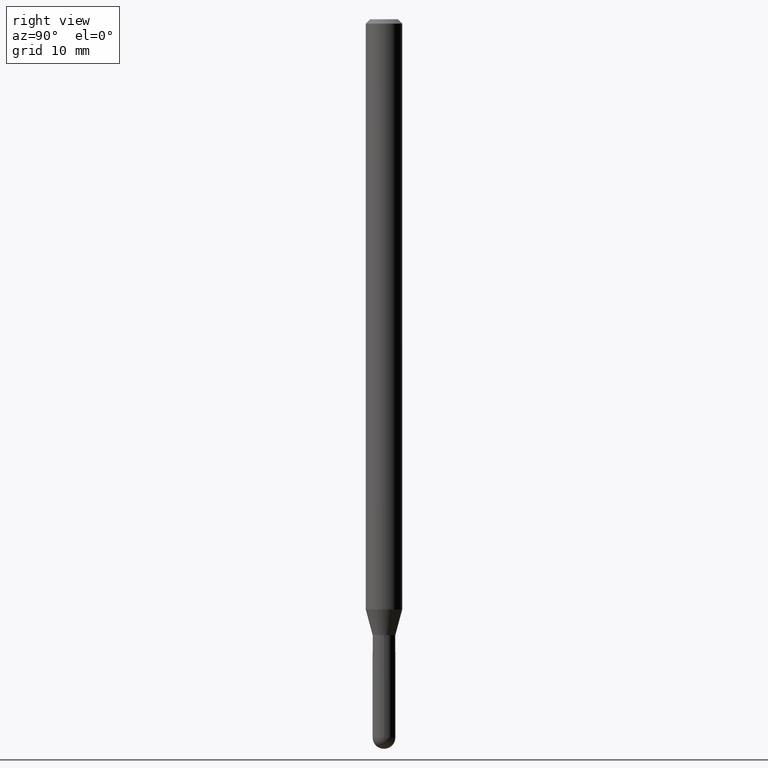
[diagram: clean part render]
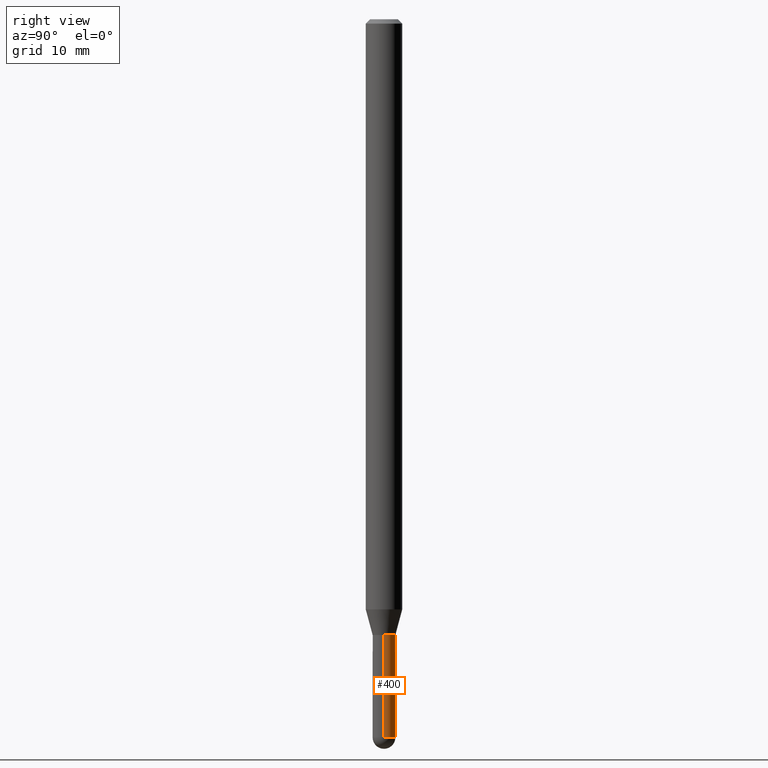
[diagram: same view with one face highlighted and labeled with its STEP entity id]
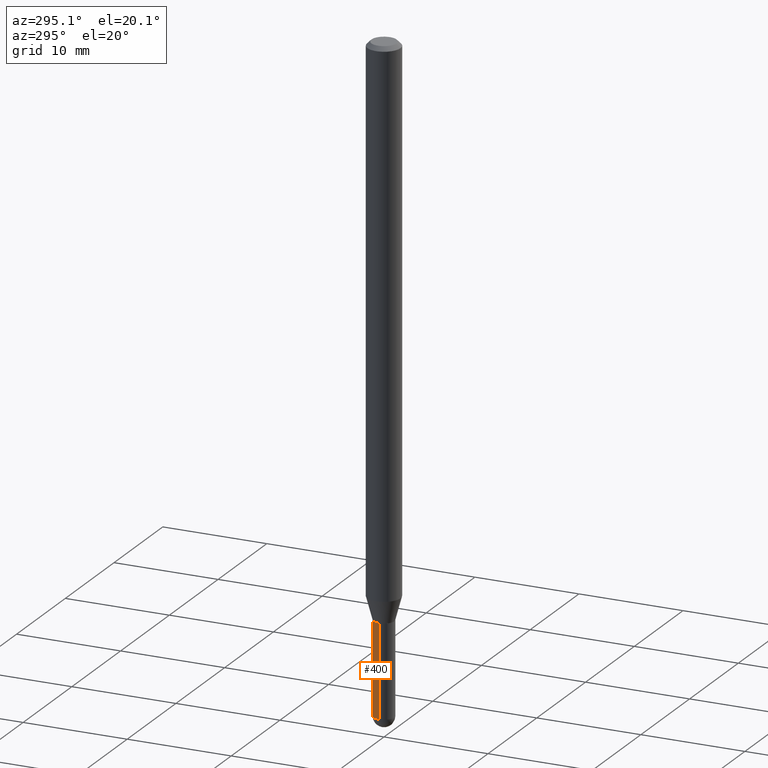
[diagram: same view with one face highlighted and labeled with its STEP entity id]
A machine part, right view. The second image highlights one B-rep face of the part: STEP entity #400.
A second angle (auxiliary view) of the same face is appended — the face is thin or edge-on in the first view.
In plain terms, the highlighted cylindrical surface (edge-blend (fillet) strip) has radius 0.9906 mm, axis along (-0, 0, 1).
Its self-contained STEP definition (entity closure, byte-faithful):
#15 = CARTESIAN_POINT ( 'NONE',  ( 0.03899999999999999994, -8.252116144355773169E-15, -2.460999999999999854 ) ) ;
#28 = DIRECTION ( 'NONE',  ( -2.445468806185136597E-29, 3.491481338843145583E-15, 1.000000000000000000 ) ) ;
#33 = EDGE_LOOP ( 'NONE', ( #316, #459, #309, #160, #425 ) ) ;
#42 = VERTEX_POINT ( 'NONE', #52 ) ;
#51 = CIRCLE ( 'NONE', #423, 0.03899999999999999994 ) ;
#52 = CARTESIAN_POINT ( 'NONE',  ( -0.03899999999999999994, -7.702668932979569039E-15, -2.110000000000000320 ) ) ;
#61 = VECTOR ( 'NONE', #285, 39.37007874015748143 ) ;
#65 = EDGE_CURVE ( 'NONE', #95, #42, #174, .T. ) ;
#73 = DIRECTION ( 'NONE',  ( 1.000000000000000000, -6.982962677686258033E-15, 0.000000000000000000 ) ) ;
#79 = CYLINDRICAL_SURFACE ( 'NONE', #479, 0.03899999999999999994 ) ;
#81 = CIRCLE ( 'NONE', #406, 0.03899999999999999994 ) ;
#95 = VERTEX_POINT ( 'NONE', #168 ) ;
#96 = VECTOR ( 'NONE', #105, 39.37007874015748143 ) ;
#105 = DIRECTION ( 'NONE',  ( -2.445468806185136877E-29, 3.491481338843145188E-15, 1.000000000000000000 ) ) ;
#108 = DIRECTION ( 'NONE',  ( 1.000000000000000000, -6.982962677686283277E-15, 0.000000000000000000 ) ) ;
#132 = CARTESIAN_POINT ( 'NONE',  ( 6.018298732021620914E-29, -8.592535574892981353E-15, -2.460999999999999854 ) ) ;
#151 = FACE_OUTER_BOUND ( 'NONE', #33, .T. ) ;
#160 = ORIENTED_EDGE ( 'NONE', *, *, #301, .F. ) ;
#168 = CARTESIAN_POINT ( 'NONE',  ( -0.03899999999999999994, -7.702668932979569039E-15, -2.460999999999999854 ) ) ;
#174 = LINE ( 'NONE', #402, #61 ) ;
#204 = AXIS2_PLACEMENT_3D ( 'NONE', #279, #28, #73 ) ;
#234 = CARTESIAN_POINT ( 'NONE',  ( 6.018298732021620914E-29, -8.592535574892981353E-15, -2.460999999999999854 ) ) ;
#236 = DIRECTION ( 'NONE',  ( 1.000000000000000000, -6.982962677686265922E-15, 4.876176775795935793E-29 ) ) ;
#253 = EDGE_CURVE ( 'NONE', #498, #276, #51, .T. ) ;
#267 = CARTESIAN_POINT ( 'NONE',  ( 0.03899999999999999994, -7.639361169388800962E-15, -2.110000000000000320 ) ) ;
#275 = CARTESIAN_POINT ( 'NONE',  ( 0.000000000000000000, 0.000000000000000000, 0.000000000000000000 ) ) ;
#276 = VERTEX_POINT ( 'NONE', #411 ) ;
#279 = CARTESIAN_POINT ( 'NONE',  ( 5.159939181050639071E-29, -7.367025624959036939E-15, -2.110000000000000320 ) ) ;
#285 = DIRECTION ( 'NONE',  ( -2.445468806185136877E-29, 3.491481338843145188E-15, 1.000000000000000000 ) ) ;
#301 = EDGE_CURVE ( 'NONE', #498, #395, #461, .T. ) ;
#305 = DIRECTION ( 'NONE',  ( -2.445468806185136597E-29, 3.491481338843145583E-15, 1.000000000000000000 ) ) ;
#309 = ORIENTED_EDGE ( 'NONE', *, *, #374, .F. ) ;
#311 = DIRECTION ( 'NONE',  ( -2.445468806185136597E-29, 3.491481338843145583E-15, 1.000000000000000000 ) ) ;
#316 = ORIENTED_EDGE ( 'NONE', *, *, #447, .T. ) ;
#335 = DIRECTION ( 'NONE',  ( 1.000000000000000000, -6.982962677686283277E-15, 0.000000000000000000 ) ) ;
#339 = CARTESIAN_POINT ( 'NONE',  ( 0.03899999999999999994, -2.723355444297643682E-16, 1.901708942560414931E-30 ) ) ;
#349 = CIRCLE ( 'NONE', #204, 0.03899999999999999994 ) ;
#374 = EDGE_CURVE ( 'NONE', #395, #42, #349, .T. ) ;
#395 = VERTEX_POINT ( 'NONE', #267 ) ;
#400 = ADVANCED_FACE ( 'NONE', ( #151 ), #79, .T. ) ;
#402 = CARTESIAN_POINT ( 'NONE',  ( -0.03899999999999999994, 2.771116669464390721E-16, -1.918384685199413078E-30 ) ) ;
#406 = AXIS2_PLACEMENT_3D ( 'NONE', #234, #305, #108 ) ;
#411 = CARTESIAN_POINT ( 'NONE',  ( 2.723355444298241737E-16, 0.03899999999999134714, -2.460999999999999854 ) ) ;
#423 = AXIS2_PLACEMENT_3D ( 'NONE', #132, #489, #335 ) ;
#425 = ORIENTED_EDGE ( 'NONE', *, *, #253, .T. ) ;
#447 = EDGE_CURVE ( 'NONE', #276, #95, #81, .T. ) ;
#459 = ORIENTED_EDGE ( 'NONE', *, *, #65, .T. ) ;
#461 = LINE ( 'NONE', #339, #96 ) ;
#479 = AXIS2_PLACEMENT_3D ( 'NONE', #275, #311, #236 ) ;
#489 = DIRECTION ( 'NONE',  ( -2.445468806185136597E-29, 3.491481338843145583E-15, 1.000000000000000000 ) ) ;
#498 = VERTEX_POINT ( 'NONE', #15 ) ;